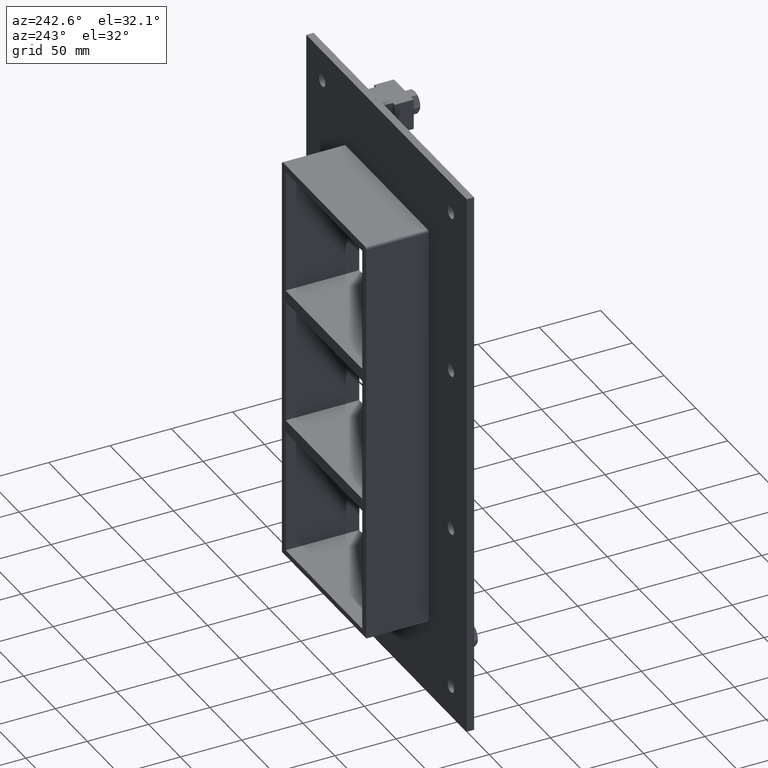
[diagram: clean part render]
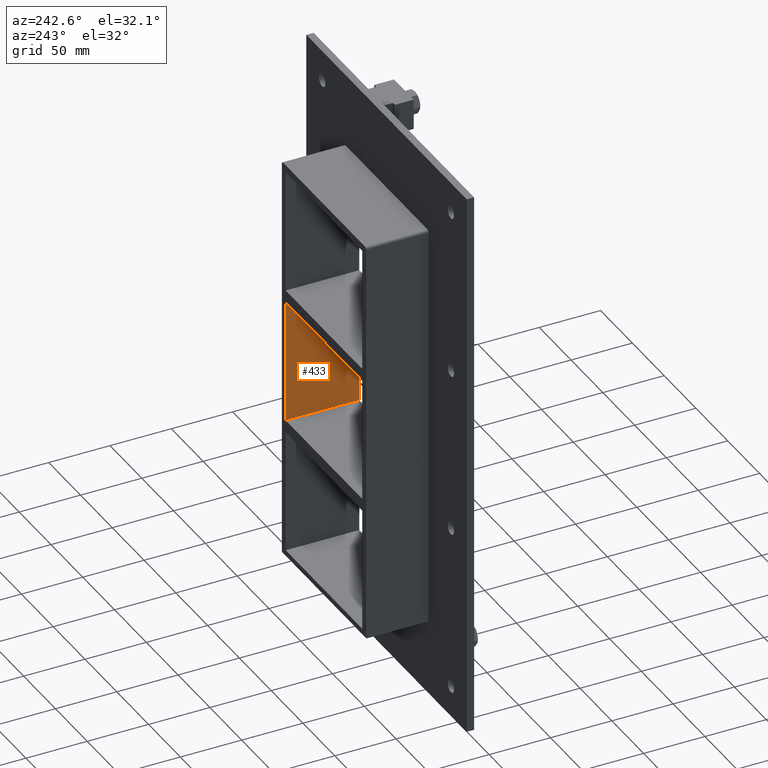
[diagram: same view with one face highlighted and labeled with its STEP entity id]
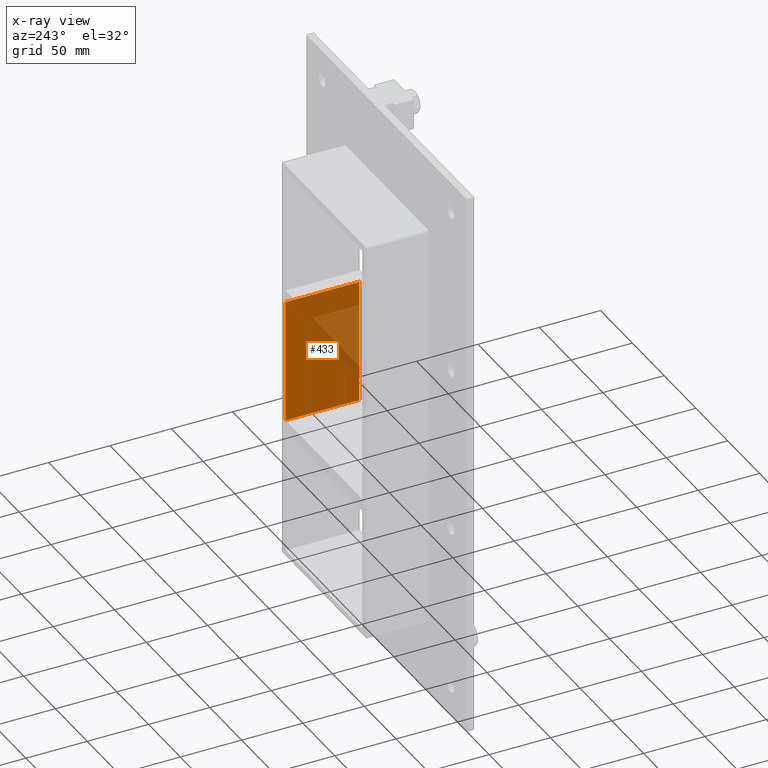
[diagram: x-ray of the same camera — body ghosted, the highlighted face saturated]
A machine part, auxiliary view. The second image highlights one B-rep face of the part: STEP entity #433.
The next image is the same camera in x-ray: the body ghosted, the highlighted face saturated — about 23% of this face is hidden behind the body in this view.
In plain terms, the highlighted planar face has unit normal (1, 0, 0).
Its self-contained STEP definition (entity closure, byte-faithful):
#297=CARTESIAN_POINT('',(60.249999999996362,-3.0,50.499999999989043));
#298=VERTEX_POINT('',#297);
#315=CARTESIAN_POINT('',(60.249999999996362,57.0,50.499999999989043));
#316=VERTEX_POINT('',#315);
#323=CARTESIAN_POINT('',(60.249999999999993,-3.0,50.499999999989058));
#324=DIRECTION('',(0.0,1.0,0.0));
#325=VECTOR('',#324,60.000000000000007);
#326=LINE('',#323,#325);
#327=EDGE_CURVE('',#298,#316,#326,.T.);
#403=CARTESIAN_POINT('',(60.249999999999993,0.0,161.50000000000003));
#404=DIRECTION('',(1.0,0.0,0.0));
#405=DIRECTION('',(0.0,0.0,-1.0));
#406=AXIS2_PLACEMENT_3D('',#403,#404,#405);
#407=PLANE('',#406);
#408=ORIENTED_EDGE('',*,*,#327,.T.);
#409=CARTESIAN_POINT('',(60.249999999999574,57.0,-50.499999999999545));
#410=VERTEX_POINT('',#409);
#411=CARTESIAN_POINT('',(60.249999999999993,57.0,-50.499999999999531));
#412=DIRECTION('',(0.0,0.0,1.0));
#413=VECTOR('',#412,100.99999999998857);
#414=LINE('',#411,#413);
#415=EDGE_CURVE('',#410,#316,#414,.T.);
#416=ORIENTED_EDGE('',*,*,#415,.F.);
#417=CARTESIAN_POINT('',(60.249999999999588,-3.0,-50.499999999999545));
#418=VERTEX_POINT('',#417);
#419=CARTESIAN_POINT('',(60.25,57.000000000000007,-50.499999999999545));
#420=DIRECTION('',(0.0,-1.0,0.0));
#421=VECTOR('',#420,60.000000000000007);
#422=LINE('',#419,#421);
#423=EDGE_CURVE('',#410,#418,#422,.T.);
#424=ORIENTED_EDGE('',*,*,#423,.T.);
#425=CARTESIAN_POINT('',(60.249999999999993,-3.0,50.499999999989051));
#426=DIRECTION('',(0.0,0.0,-1.0));
#427=VECTOR('',#426,100.99999999998857);
#428=LINE('',#425,#427);
#429=EDGE_CURVE('',#298,#418,#428,.T.);
#430=ORIENTED_EDGE('',*,*,#429,.F.);
#431=EDGE_LOOP('',(#408,#416,#424,#430));
#432=FACE_OUTER_BOUND('',#431,.T.);
#433=ADVANCED_FACE('',(#432),#407,.F.);